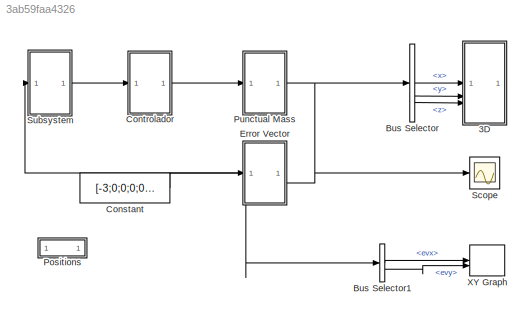
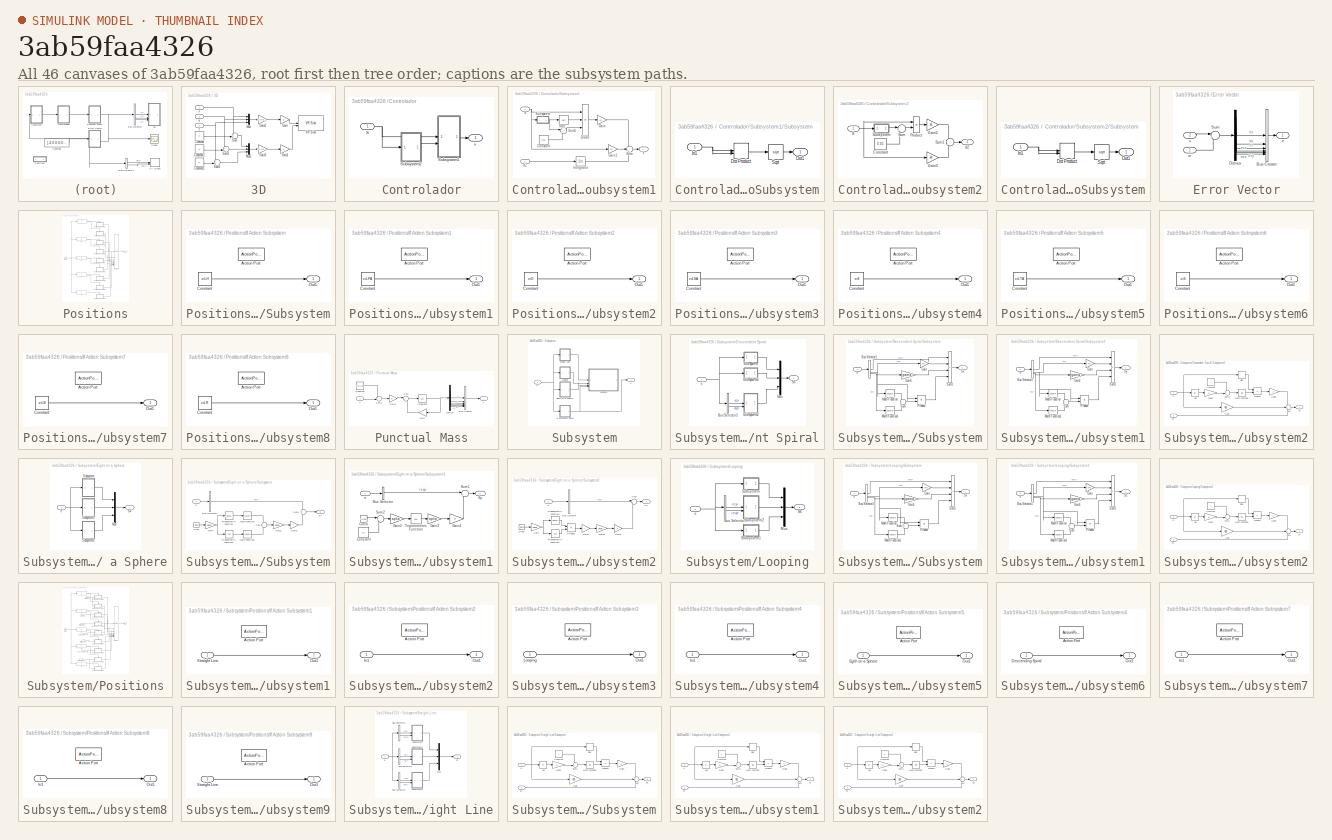
[diagram: thumbnail index - all 46 canvases of the model, root first then tree order]
MODEL slx_3ab59faa4326
KIND model
CONFIG AbsTol = auto
CONFIG EnableMultiTasking = off
CONFIG FixedStep = 0.01
CONFIG MaxStep = auto
CONFIG MinStep = auto
CONFIG RelTol = 1e-3
CONFIG SampleTimeConstraint = Unconstrained
CONFIG SolverName = ode8
CONFIG StartTime = 0.0
CONFIG StopTime = t6
BLOCK [SubSystem] 3D
BLOCK [Constant] 3D/Constant
  Value = 0
BLOCK [Constant] 3D/Constant1
  Value = 0
BLOCK [Constant] 3D/Constant2
  Value = 0
BLOCK [Gain] 3D/Gain
  Gain = 2
BLOCK [Gain] 3D/Gain1
  Gain = 2
BLOCK [Gain] 3D/Gain2
  Gain = [1 0 0; 0 0 1; 0 -1 0]
  Multiplication = Matrix(K*u)
BLOCK [Gain] 3D/Gain3
  Gain = [1 0 0; 0 0 1; 0 -1 0]
  Multiplication = Matrix(K*u)
BLOCK [Mux] 3D/Mux
  DisplayOption = bar
  Inputs = 3
BLOCK [Mux] 3D/Mux1
  DisplayOption = bar
  Inputs = 3
BLOCK [Sum] 3D/Sum
  Inputs = ++|
BLOCK [Sum] 3D/Sum1
  Inputs = ++|
BLOCK [Sum] 3D/Sum2
  Inputs = ++|
BLOCK [Reference] 3D/VR Sink  REF=vrlib/VR Sink
  InstantiateOnLoad = on
  SourceBlock = vrlib/VR Sink
  SourceType = Virtual Reality Sink
BLOCK [Inport] 3D/x
BLOCK [Inport] 3D/y
  Port = 2
BLOCK [Inport] 3D/z
  Port = 3
BLOCK [BusSelector] Bus Selector
  OutputSignals = x,y,z
BLOCK [BusSelector] Bus Selector1
  OutputSignals = evx,evy,evz
BLOCK [Constant] Constant
  Value = [-3;0;0;0;0;0]
BLOCK [SubSystem] Controlador
BLOCK [Inport] Controlador/S
BLOCK [SubSystem] Controlador/Subsystem1
BLOCK [Constant] Controlador/Subsystem1/Constant
  Value = 0.01
BLOCK [Product] Controlador/Subsystem1/Divide
  Inputs = **/
BLOCK [Gain] Controlador/Subsystem1/Gain
  Gain = k1
BLOCK [Gain] Controlador/Subsystem1/Gain1
  Gain = k2
BLOCK [Integrator] Controlador/Subsystem1/Integrator
BLOCK [Inport] Controlador/Subsystem1/S
BLOCK [Sqrt] Controlador/Subsystem1/Sqrt
BLOCK [SubSystem] Controlador/Subsystem1/Subsystem
BLOCK [DotProduct] Controlador/Subsystem1/Subsystem/Dot Product
  OutDataTypeStr = Inherit: Inherit via internal rule
BLOCK [Inport] Controlador/Subsystem1/Subsystem/In1
BLOCK [Outport] Controlador/Subsystem1/Subsystem/Out1
BLOCK [Sqrt] Controlador/Subsystem1/Subsystem/Sqrt
BLOCK [Sum] Controlador/Subsystem1/Sum
  Inputs = --+
BLOCK [Sum] Controlador/Subsystem1/Sum1
  Inputs = |++
BLOCK [Inport] Controlador/Subsystem1/dZ
  Port = 2
BLOCK [Outport] Controlador/Subsystem1/v
BLOCK [SubSystem] Controlador/Subsystem2
BLOCK [Constant] Controlador/Subsystem2/Constant
  Value = 0.01
BLOCK [Gain] Controlador/Subsystem2/Gain2
  Gain = k3
BLOCK [Gain] Controlador/Subsystem2/Gain3
  Gain = k4
BLOCK [Product] Controlador/Subsystem2/Product
  Inputs = */
BLOCK [Inport] Controlador/Subsystem2/S
BLOCK [SubSystem] Controlador/Subsystem2/Subsystem
BLOCK [DotProduct] Controlador/Subsystem2/Subsystem/Dot Product
  OutDataTypeStr = Inherit: Inherit via internal rule
BLOCK [Inport] Controlador/Subsystem2/Subsystem/In1
BLOCK [Outport] Controlador/Subsystem2/Subsystem/Out1
BLOCK [Sqrt] Controlador/Subsystem2/Subsystem/Sqrt
BLOCK [Sum] Controlador/Subsystem2/Sum
  Inputs = |++
BLOCK [Sum] Controlador/Subsystem2/Sum1
  Inputs = --
BLOCK [Outport] Controlador/Subsystem2/dZ
BLOCK [Outport] Controlador/v
BLOCK [SubSystem] Error Vector
  PortSchema = {"entries":[{"content":{"sides":[{"content":{"connectorIds":["Out1","In1"]},"type":"ConnectorPlacement.EquallySpacedRectSide","uuid":"f657f758-fbd3-4a41-9063-d27a9332990f"},{"content":{"connectorIds":["In2"],"side":"RIGHT"},"type":"ConnectorPlacement.EquallySpacedRectSide","uuid":"1c515ff8-89aa-408f-b30d-a9af781c1d92"},{"content":{"side":"TOP"},"type":"ConnectorPlacement.EquallySpacedRectSide","uu...<+228ch>
BLOCK [BusCreator] Error Vector/Bus Creator
  DisplayOption = bar
  InheritFromInputs = on
  Inputs = 6
BLOCK [Demux] Error Vector/Demux
  Outputs = 6
BLOCK [Sum] Error Vector/Sum
  Inputs = |+-
BLOCK [Outport] Error Vector/e
  NameLocation = top
BLOCK [Inport] Error Vector/x
  Port = 2
BLOCK [Inport] Error Vector/xr
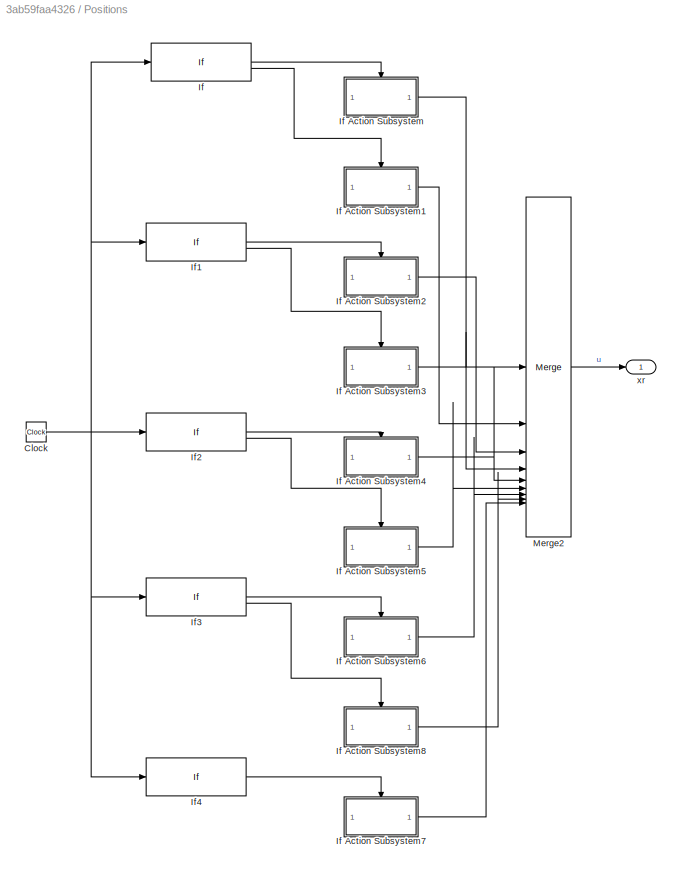
BLOCK [SubSystem] Positions
BLOCK [Clock] Positions/Clock
BLOCK [If] Positions/If
  ElseIfExpressions = u1 <= t2 & u1 > t1
  IfExpression = u1 <= t1
  ShowElse = off
BLOCK [SubSystem] Positions/If Action Subsystem
  TreatAsAtomicUnit = on
BLOCK [ActionPort] Positions/If Action Subsystem/Action Port
  ActionPortLabel = if(u1 <= t1)
BLOCK [Constant] Positions/If Action Subsystem/Constant
  Value = xrLH
BLOCK [Outport] Positions/If Action Subsystem/Out1
BLOCK [SubSystem] Positions/If Action Subsystem1
  TreatAsAtomicUnit = on
BLOCK [ActionPort] Positions/If Action Subsystem1/Action Port
  ActionPortLabel = elseif(u1 <= t2 & u1 > t1)
BLOCK [Constant] Positions/If Action Subsystem1/Constant
  Value = xrLPA
BLOCK [Outport] Positions/If Action Subsystem1/Out1
BLOCK [SubSystem] Positions/If Action Subsystem2
  TreatAsAtomicUnit = on
BLOCK [ActionPort] Positions/If Action Subsystem2/Action Port
  ActionPortLabel = if(u1 <= tO & u1 > t2)
BLOCK [Constant] Positions/If Action Subsystem2/Constant
  Value = xrO
BLOCK [Outport] Positions/If Action Subsystem2/Out1
BLOCK [SubSystem] Positions/If Action Subsystem3
  TreatAsAtomicUnit = on
BLOCK [ActionPort] Positions/If Action Subsystem3/Action Port
  ActionPortLabel = elseif(u1 <= t3 & u1 > tO)
BLOCK [Constant] Positions/If Action Subsystem3/Constant
  Value = xrLSA
BLOCK [Outport] Positions/If Action Subsystem3/Out1
BLOCK [SubSystem] Positions/If Action Subsystem4
  TreatAsAtomicUnit = on
BLOCK [ActionPort] Positions/If Action Subsystem4/Action Port
  ActionPortLabel = if(u1 <= t8 & u1 > t3)
BLOCK [Constant] Positions/If Action Subsystem4/Constant
  Value = xr8
BLOCK [Outport] Positions/If Action Subsystem4/Out1
BLOCK [SubSystem] Positions/If Action Subsystem5
  TreatAsAtomicUnit = on
BLOCK [ActionPort] Positions/If Action Subsystem5/Action Port
  ActionPortLabel = elseif(u1 <= t4 & u1 > t8)
BLOCK [Constant] Positions/If Action Subsystem5/Constant
  Value = xrLTA
BLOCK [Outport] Positions/If Action Subsystem5/Out1
BLOCK [SubSystem] Positions/If Action Subsystem6
  TreatAsAtomicUnit = on
BLOCK [ActionPort] Positions/If Action Subsystem6/Action Port
  ActionPortLabel = if(u1 <= tS & u1 > t4)
BLOCK [Constant] Positions/If Action Subsystem6/Constant
  Value = xrS
BLOCK [Outport] Positions/If Action Subsystem6/Out1
BLOCK [SubSystem] Positions/If Action Subsystem7
  TreatAsAtomicUnit = on
BLOCK [ActionPort] Positions/If Action Subsystem7/Action Port
  ActionPortLabel = if(u1 > t5)
BLOCK [Constant] Positions/If Action Subsystem7/Constant
  Value = xrLB
BLOCK [Outport] Positions/If Action Subsystem7/Out1
BLOCK [SubSystem] Positions/If Action Subsystem8
  TreatAsAtomicUnit = on
BLOCK [ActionPort] Positions/If Action Subsystem8/Action Port
  ActionPortLabel = elseif(u1 <= t5 & u1 > tS)
BLOCK [Constant] Positions/If Action Subsystem8/Constant
  Value = xrLR
BLOCK [Outport] Positions/If Action Subsystem8/Out1
BLOCK [If] Positions/If1
  ElseIfExpressions = u1 <= t3 & u1 > tO
  IfExpression = u1 <= tO & u1 > t2
  ShowElse = off
BLOCK [If] Positions/If2
  ElseIfExpressions = u1 <= t4 & u1 > t8
  IfExpression = u1 <= t8 & u1 > t3
  ShowElse = off
BLOCK [If] Positions/If3
  ElseIfExpressions = u1 <= t5 & u1 > tS
  IfExpression = u1 <= tS & u1 > t4
  ShowElse = off
BLOCK [If] Positions/If4
  IfExpression = u1 > t5
  ShowElse = off
BLOCK [Merge] Positions/Merge2
  Inputs = 9
BLOCK [Outport] Positions/xr
BLOCK [SubSystem] Punctual Mass
BLOCK [BusCreator] Punctual Mass/Bus Creator
  DisplayOption = bar
  InheritFromInputs = on
  Inputs = 6
BLOCK [Constant] Punctual Mass/Constant
  Value = [0;0;0]
BLOCK [Demux] Punctual Mass/Demux
  Outputs = 6
BLOCK [Gain] Punctual Mass/Gain
  Gain = A
  Multiplication = Matrix(K*u)
  NameLocation = top
BLOCK [Gain] Punctual Mass/Gain1
  Gain = B
  Multiplication = Matrix(K*u)
BLOCK [Integrator] Punctual Mass/Integrator
  InitialCondition = [0;0;0;0;0;0]
BLOCK [Sum] Punctual Mass/Sum
  Inputs = |++
BLOCK [Sum] Punctual Mass/Sum1
  Inputs = ++|
BLOCK [Inport] Punctual Mass/u
BLOCK [Outport] Punctual Mass/x
BLOCK [Scope] Scope
  Floating = off
  NumInputPorts = 1
  ScopeSpecificationString = Simulink.scopes.TimeScopeBlockCfg('CurrentConfiguration', extmgr.ConfigurationSet(extmgr.Configuration('Core','General UI',true),extmgr.Configuration('Core','Source UI',true),extmgr.Configuration('Sources','WiredSimulink',true),extmgr.Configuration('Visuals','Time Domain',true,'SerializedDisplays',{struct('MinYLimReal','-12.34994','MaxYLimReal','3.66302','YLabelReal','','MinYLimMag','0.00000','Max...<+1483ch>
BLOCK [SubSystem] Subsystem
BLOCK [SubSystem] Subsystem/Descendent Spiral
BLOCK [BusSelector] Subsystem/Descendent Spiral/Bus Selector3
  OutputSignals = ez,evz
BLOCK [Mux] Subsystem/Descendent Spiral/Mux
  DisplayOption = bar
  Inputs = 3
BLOCK [Outport] Subsystem/Descendent Spiral/S6
BLOCK [SubSystem] Subsystem/Descendent Spiral/Subsystem
BLOCK [BusSelector] Subsystem/Descendent Spiral/Subsystem/Bus Selector1
  OutputSignals = evx,ex,ey
BLOCK [Gain] Subsystem/Descendent Spiral/Subsystem/Gain
  Gain = mu
BLOCK [Gain] Subsystem/Descendent Spiral/Subsystem/Gain1
  Gain = gama
BLOCK [Math] Subsystem/Descendent Spiral/Subsystem/Math Function
  Operator = square
BLOCK [Math] Subsystem/Descendent Spiral/Subsystem/Math Function1
  Operator = square
BLOCK [Product] Subsystem/Descendent Spiral/Subsystem/Product
BLOCK [Sum] Subsystem/Descendent Spiral/Subsystem/Sum
BLOCK [Sum] Subsystem/Descendent Spiral/Subsystem/Sum1
  IconShape = rectangular
  Inputs = +--+
BLOCK [Outport] Subsystem/Descendent Spiral/Subsystem/Sx
BLOCK [Inport] Subsystem/Descendent Spiral/Subsystem/e
BLOCK [SubSystem] Subsystem/Descendent Spiral/Subsystem1
BLOCK [BusSelector] Subsystem/Descendent Spiral/Subsystem1/Bus Selector1
  OutputSignals = evy,ey,ex
BLOCK [Gain] Subsystem/Descendent Spiral/Subsystem1/Gain
  Gain = mu
BLOCK [Gain] Subsystem/Descendent Spiral/Subsystem1/Gain1
  Gain = gama
BLOCK [Math] Subsystem/Descendent Spiral/Subsystem1/Math Function
  Operator = square
BLOCK [Math] Subsystem/Descendent Spiral/Subsystem1/Math Function1
  Operator = square
BLOCK [Product] Subsystem/Descendent Spiral/Subsystem1/Product
BLOCK [Sum] Subsystem/Descendent Spiral/Subsystem1/Sum
BLOCK [Sum] Subsystem/Descendent Spiral/Subsystem1/Sum1
  IconShape = rectangular
  Inputs = +-++
BLOCK [Outport] Subsystem/Descendent Spiral/Subsystem1/Sy
BLOCK [Inport] Subsystem/Descendent Spiral/Subsystem1/e
BLOCK [SubSystem] Subsystem/Descendent Spiral/Subsystem2
BLOCK [Abs] Subsystem/Descendent Spiral/Subsystem2/Abs
  SaturateOnIntegerOverflow = off
BLOCK [Constant] Subsystem/Descendent Spiral/Subsystem2/Constant
BLOCK [Gain] Subsystem/Descendent Spiral/Subsystem2/Gain
  Gain = cp
BLOCK [Gain] Subsystem/Descendent Spiral/Subsystem2/Gain1
  Gain = c
BLOCK [Gain] Subsystem/Descendent Spiral/Subsystem2/Gain2
  Gain = k
BLOCK [Math] Subsystem/Descendent Spiral/Subsystem2/Math Function
  Operator = log
BLOCK [Product] Subsystem/Descendent Spiral/Subsystem2/Product
BLOCK [Signum] Subsystem/Descendent Spiral/Subsystem2/Sign
BLOCK [Sum] Subsystem/Descendent Spiral/Subsystem2/Sum
  Inputs = +++
BLOCK [Sum] Subsystem/Descendent Spiral/Subsystem2/Sum1
  Inputs = ++|
BLOCK [Outport] Subsystem/Descendent Spiral/Subsystem2/Sz
BLOCK [Inport] Subsystem/Descendent Spiral/Subsystem2/e
BLOCK [Inport] Subsystem/Descendent Spiral/Subsystem2/ev
  Port = 2
BLOCK [Inport] Subsystem/Descendent Spiral/e
BLOCK [SubSystem] Subsystem/Eight on a Sphere
BLOCK [Mux] Subsystem/Eight on a Sphere/Mux
  DisplayOption = bar
  Inputs = 3
BLOCK [Outport] Subsystem/Eight on a Sphere/S4
BLOCK [SubSystem] Subsystem/Eight on a Sphere/Subsystem
BLOCK [BusSelector] Subsystem/Eight on a Sphere/Subsystem/Bus Selector1
  OutputSignals = evx
BLOCK [Clock] Subsystem/Eight on a Sphere/Subsystem/Clock
BLOCK [Gain] Subsystem/Eight on a Sphere/Subsystem/Gain
  Gain = apha
BLOCK [Gain] Subsystem/Eight on a Sphere/Subsystem/Gain1
  Gain = apha
BLOCK [Gain] Subsystem/Eight on a Sphere/Subsystem/Gain2
  Gain = r
BLOCK [Math] Subsystem/Eight on a Sphere/Subsystem/Math Function
  Operator = square
BLOCK [Math] Subsystem/Eight on a Sphere/Subsystem/Math Function1
  Operator = square
BLOCK [Sum] Subsystem/Eight on a Sphere/Subsystem/Sum
  Inputs = -+
BLOCK [Sum] Subsystem/Eight on a Sphere/Subsystem/Sum1
BLOCK [Outport] Subsystem/Eight on a Sphere/Subsystem/Sx
BLOCK [Trigonometry] Subsystem/Eight on a Sphere/Subsystem/Trigonometric Function
BLOCK [Trigonometry] Subsystem/Eight on a Sphere/Subsystem/Trigonometric Function1
  Operator = cos
BLOCK [Inport] Subsystem/Eight on a Sphere/Subsystem/e
BLOCK [SubSystem] Subsystem/Eight on a Sphere/Subsystem1
BLOCK [BusSelector] Subsystem/Eight on a Sphere/Subsystem1/Bus Selector
  OutputSignals = evy
BLOCK [Clock] Subsystem/Eight on a Sphere/Subsystem1/Clock
BLOCK [Constant] Subsystem/Eight on a Sphere/Subsystem1/Constant
  Value = t3
BLOCK [Gain] Subsystem/Eight on a Sphere/Subsystem1/Gain2
  Gain = apha
BLOCK [Gain] Subsystem/Eight on a Sphere/Subsystem1/Gain3
  Gain = apha
BLOCK [Gain] Subsystem/Eight on a Sphere/Subsystem1/Gain4
  Gain = r
BLOCK [Sum] Subsystem/Eight on a Sphere/Subsystem1/Sum1
  Inputs = |+-
BLOCK [Sum] Subsystem/Eight on a Sphere/Subsystem1/Sum2
  Inputs = |+-
BLOCK [Outport] Subsystem/Eight on a Sphere/Subsystem1/Sy
BLOCK [Trigonometry] Subsystem/Eight on a Sphere/Subsystem1/Trigonometric Function
  Operator = cos
BLOCK [Inport] Subsystem/Eight on a Sphere/Subsystem1/e
BLOCK [SubSystem] Subsystem/Eight on a Sphere/Subsystem2
BLOCK [BusSelector] Subsystem/Eight on a Sphere/Subsystem2/Bus Selector
  OutputSignals = evz
BLOCK [Clock] Subsystem/Eight on a Sphere/Subsystem2/Clock
BLOCK [Gain] Subsystem/Eight on a Sphere/Subsystem2/Gain
  Gain = apha
BLOCK [Gain] Subsystem/Eight on a Sphere/Subsystem2/Gain1
  Gain = r
BLOCK [Gain] Subsystem/Eight on a Sphere/Subsystem2/Gain2
  Gain = apha
BLOCK [Gain] Subsystem/Eight on a Sphere/Subsystem2/Gain3
  Gain = 2
BLOCK [Product] Subsystem/Eight on a Sphere/Subsystem2/Product
BLOCK [Sum] Subsystem/Eight on a Sphere/Subsystem2/Sum
  Inputs = |+-
BLOCK [Outport] Subsystem/Eight on a Sphere/Subsystem2/Sz
BLOCK [Trigonometry] Subsystem/Eight on a Sphere/Subsystem2/Trigonometric Function
BLOCK [Trigonometry] Subsystem/Eight on a Sphere/Subsystem2/Trigonometric Function1
  Operator = cos
BLOCK [Inport] Subsystem/Eight on a Sphere/Subsystem2/e
BLOCK [Inport] Subsystem/Eight on a Sphere/e
BLOCK [SubSystem] Subsystem/Looping
BLOCK [BusSelector] Subsystem/Looping/Bus Selector3
  OutputSignals = ey,evy
BLOCK [Mux] Subsystem/Looping/Mux
  DisplayOption = bar
  Inputs = 3
BLOCK [Outport] Subsystem/Looping/S6
BLOCK [SubSystem] Subsystem/Looping/Subsystem
BLOCK [BusSelector] Subsystem/Looping/Subsystem/Bus Selector1
  OutputSignals = evx,ex,ez
BLOCK [Gain] Subsystem/Looping/Subsystem/Gain
  Gain = mu
BLOCK [Gain] Subsystem/Looping/Subsystem/Gain1
  Gain = gama
BLOCK [Math] Subsystem/Looping/Subsystem/Math Function
  Operator = square
BLOCK [Math] Subsystem/Looping/Subsystem/Math Function1
  Operator = square
BLOCK [Product] Subsystem/Looping/Subsystem/Product
BLOCK [Sum] Subsystem/Looping/Subsystem/Sum
BLOCK [Sum] Subsystem/Looping/Subsystem/Sum1
  IconShape = rectangular
  Inputs = +--+
BLOCK [Outport] Subsystem/Looping/Subsystem/Sx
BLOCK [Inport] Subsystem/Looping/Subsystem/e
BLOCK [SubSystem] Subsystem/Looping/Subsystem1
BLOCK [BusSelector] Subsystem/Looping/Subsystem1/Bus Selector1
  OutputSignals = evz,ez,ex
BLOCK [Gain] Subsystem/Looping/Subsystem1/Gain
  Gain = mu
BLOCK [Gain] Subsystem/Looping/Subsystem1/Gain1
  Gain = gama
BLOCK [Math] Subsystem/Looping/Subsystem1/Math Function
  Operator = square
BLOCK [Math] Subsystem/Looping/Subsystem1/Math Function1
  Operator = square
BLOCK [Product] Subsystem/Looping/Subsystem1/Product
BLOCK [Sum] Subsystem/Looping/Subsystem1/Sum
BLOCK [Sum] Subsystem/Looping/Subsystem1/Sum1
  IconShape = rectangular
  Inputs = +-++
BLOCK [Outport] Subsystem/Looping/Subsystem1/Sz
BLOCK [Inport] Subsystem/Looping/Subsystem1/e
BLOCK [SubSystem] Subsystem/Looping/Subsystem2
BLOCK [Abs] Subsystem/Looping/Subsystem2/Abs
  SaturateOnIntegerOverflow = off
BLOCK [Constant] Subsystem/Looping/Subsystem2/Constant
BLOCK [Gain] Subsystem/Looping/Subsystem2/Gain
  Gain = cp
BLOCK [Gain] Subsystem/Looping/Subsystem2/Gain1
  Gain = c
BLOCK [Gain] Subsystem/Looping/Subsystem2/Gain2
  Gain = k
BLOCK [Math] Subsystem/Looping/Subsystem2/Math Function
  Operator = log
BLOCK [Product] Subsystem/Looping/Subsystem2/Product
BLOCK [Signum] Subsystem/Looping/Subsystem2/Sign
BLOCK [Sum] Subsystem/Looping/Subsystem2/Sum
  Inputs = +++
BLOCK [Sum] Subsystem/Looping/Subsystem2/Sum1
  Inputs = ++|
BLOCK [Outport] Subsystem/Looping/Subsystem2/Sy
BLOCK [Inport] Subsystem/Looping/Subsystem2/e
BLOCK [Inport] Subsystem/Looping/Subsystem2/ev
  Port = 2
BLOCK [Inport] Subsystem/Looping/e
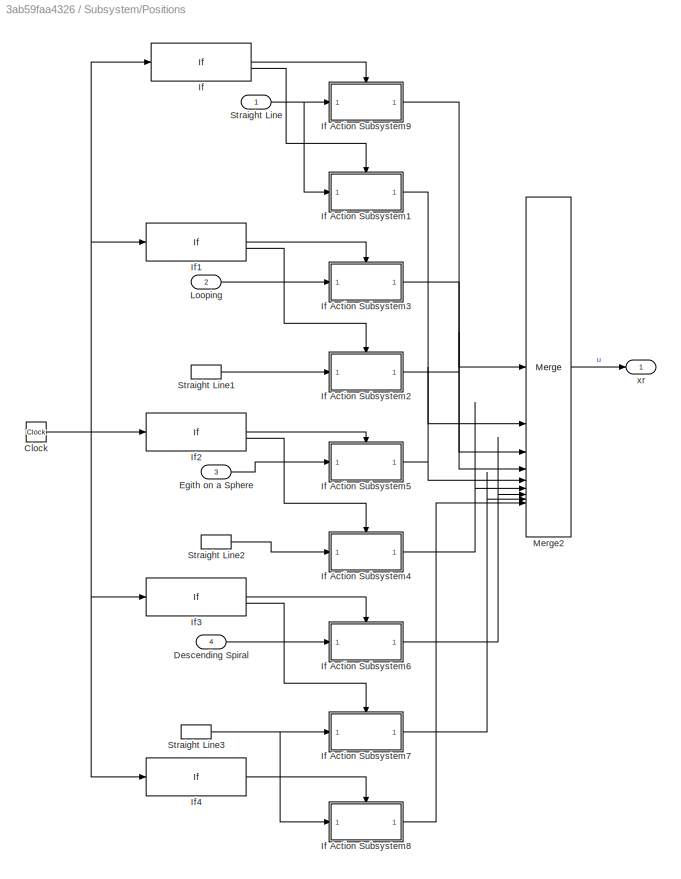
BLOCK [SubSystem] Subsystem/Positions
BLOCK [Clock] Subsystem/Positions/Clock
BLOCK [Inport] Subsystem/Positions/Descending Spiral
  Port = 4
BLOCK [Inport] Subsystem/Positions/Egith on a Sphere
  Port = 3
BLOCK [If] Subsystem/Positions/If
  ElseIfExpressions = u1 <= t2 & u1 > t1
  IfExpression = u1 <= t1
  ShowElse = off
BLOCK [SubSystem] Subsystem/Positions/If Action Subsystem1
  TreatAsAtomicUnit = on
BLOCK [ActionPort] Subsystem/Positions/If Action Subsystem1/Action Port
  ActionPortLabel = elseif(u1 <= t2 & u1 > t1)
BLOCK [Outport] Subsystem/Positions/If Action Subsystem1/Out1
BLOCK [Inport] Subsystem/Positions/If Action Subsystem1/Straight Line
BLOCK [SubSystem] Subsystem/Positions/If Action Subsystem2
  TreatAsAtomicUnit = on
BLOCK [ActionPort] Subsystem/Positions/If Action Subsystem2/Action Port
  ActionPortLabel = elseif(u1 <= t3 & u1 > tO)
BLOCK [Inport] Subsystem/Positions/If Action Subsystem2/In1
BLOCK [Outport] Subsystem/Positions/If Action Subsystem2/Out1
BLOCK [SubSystem] Subsystem/Positions/If Action Subsystem3
  TreatAsAtomicUnit = on
BLOCK [ActionPort] Subsystem/Positions/If Action Subsystem3/Action Port
  ActionPortLabel = if(u1 <= tO & u1 > t2)
BLOCK [Inport] Subsystem/Positions/If Action Subsystem3/Looping
BLOCK [Outport] Subsystem/Positions/If Action Subsystem3/Out1
BLOCK [SubSystem] Subsystem/Positions/If Action Subsystem4
  TreatAsAtomicUnit = on
BLOCK [ActionPort] Subsystem/Positions/If Action Subsystem4/Action Port
  ActionPortLabel = elseif(u1 <= t4 & u1 > t8)
BLOCK [Inport] Subsystem/Positions/If Action Subsystem4/In1
BLOCK [Outport] Subsystem/Positions/If Action Subsystem4/Out1
BLOCK [SubSystem] Subsystem/Positions/If Action Subsystem5
  TreatAsAtomicUnit = on
BLOCK [ActionPort] Subsystem/Positions/If Action Subsystem5/Action Port
  ActionPortLabel = if(u1 <= t8 & u1 > t3)
BLOCK [Inport] Subsystem/Positions/If Action Subsystem5/Egith on a Sphere
BLOCK [Outport] Subsystem/Positions/If Action Subsystem5/Out1
BLOCK [SubSystem] Subsystem/Positions/If Action Subsystem6
  TreatAsAtomicUnit = on
BLOCK [ActionPort] Subsystem/Positions/If Action Subsystem6/Action Port
  ActionPortLabel = if(u1 <= tS & u1 > t4)
BLOCK [Inport] Subsystem/Positions/If Action Subsystem6/Descending Spiral
BLOCK [Outport] Subsystem/Positions/If Action Subsystem6/Out1
BLOCK [SubSystem] Subsystem/Positions/If Action Subsystem7
  TreatAsAtomicUnit = on
BLOCK [ActionPort] Subsystem/Positions/If Action Subsystem7/Action Port
  ActionPortLabel = elseif(u1 <= t5 & u1 > tS)
BLOCK [Inport] Subsystem/Positions/If Action Subsystem7/In1
BLOCK [Outport] Subsystem/Positions/If Action Subsystem7/Out1
BLOCK [SubSystem] Subsystem/Positions/If Action Subsystem8
  TreatAsAtomicUnit = on
BLOCK [ActionPort] Subsystem/Positions/If Action Subsystem8/Action Port
  ActionPortLabel = if(u1 > t5)
BLOCK [Inport] Subsystem/Positions/If Action Subsystem8/In1
BLOCK [Outport] Subsystem/Positions/If Action Subsystem8/Out1
BLOCK [SubSystem] Subsystem/Positions/If Action Subsystem9
  TreatAsAtomicUnit = on
BLOCK [ActionPort] Subsystem/Positions/If Action Subsystem9/Action Port
  ActionPortLabel = if(u1 <= t1)
BLOCK [Outport] Subsystem/Positions/If Action Subsystem9/Out1
BLOCK [Inport] Subsystem/Positions/If Action Subsystem9/Straight Line
BLOCK [If] Subsystem/Positions/If1
  ElseIfExpressions = u1 <= t3 & u1 > tO
  IfExpression = u1 <= tO & u1 > t2
  ShowElse = off
BLOCK [If] Subsystem/Positions/If2
  ElseIfExpressions = u1 <= t4 & u1 > t8
  IfExpression = u1 <= t8 & u1 > t3
  ShowElse = off
BLOCK [If] Subsystem/Positions/If3
  ElseIfExpressions = u1 <= t5 & u1 > tS
  IfExpression = u1 <= tS & u1 > t4
  ShowElse = off
BLOCK [If] Subsystem/Positions/If4
  IfExpression = u1 > t5
  ShowElse = off
BLOCK [Inport] Subsystem/Positions/Looping
  Port = 2
BLOCK [Merge] Subsystem/Positions/Merge2
  Inputs = 9
BLOCK [Inport] Subsystem/Positions/Straight Line
BLOCK [InportShadow] Subsystem/Positions/Straight Line1
BLOCK [InportShadow] Subsystem/Positions/Straight Line2
BLOCK [InportShadow] Subsystem/Positions/Straight Line3
BLOCK [Outport] Subsystem/Positions/xr
BLOCK [Outport] Subsystem/S
BLOCK [SubSystem] Subsystem/Staight Line
BLOCK [BusSelector] Subsystem/Staight Line/Bus Selector1
  OutputSignals = ex,evx
BLOCK [BusSelector] Subsystem/Staight Line/Bus Selector2
  OutputSignals = ey,evy
BLOCK [BusSelector] Subsystem/Staight Line/Bus Selector3
  OutputSignals = ez,evz
BLOCK [Mux] Subsystem/Staight Line/Mux
  DisplayOption = bar
  Inputs = 3
BLOCK [Outport] Subsystem/Staight Line/Sj
BLOCK [SubSystem] Subsystem/Staight Line/Subsystem
BLOCK [Abs] Subsystem/Staight Line/Subsystem/Abs
  SaturateOnIntegerOverflow = off
BLOCK [Constant] Subsystem/Staight Line/Subsystem/Constant
BLOCK [Gain] Subsystem/Staight Line/Subsystem/Gain
  Gain = cp
BLOCK [Gain] Subsystem/Staight Line/Subsystem/Gain1
  Gain = c
BLOCK [Gain] Subsystem/Staight Line/Subsystem/Gain2
  Gain = k
BLOCK [Math] Subsystem/Staight Line/Subsystem/Math Function
  Operator = log
BLOCK [Product] Subsystem/Staight Line/Subsystem/Product
BLOCK [Signum] Subsystem/Staight Line/Subsystem/Sign
BLOCK [Sum] Subsystem/Staight Line/Subsystem/Sum
  Inputs = +++
BLOCK [Sum] Subsystem/Staight Line/Subsystem/Sum1
  Inputs = ++|
BLOCK [Outport] Subsystem/Staight Line/Subsystem/Sx
BLOCK [Inport] Subsystem/Staight Line/Subsystem/e
BLOCK [Inport] Subsystem/Staight Line/Subsystem/ev
  Port = 2
BLOCK [SubSystem] Subsystem/Staight Line/Subsystem1
BLOCK [Abs] Subsystem/Staight Line/Subsystem1/Abs
  SaturateOnIntegerOverflow = off
BLOCK [Constant] Subsystem/Staight Line/Subsystem1/Constant
BLOCK [Gain] Subsystem/Staight Line/Subsystem1/Gain
  Gain = cp
BLOCK [Gain] Subsystem/Staight Line/Subsystem1/Gain1
  Gain = c
BLOCK [Gain] Subsystem/Staight Line/Subsystem1/Gain2
  Gain = k
BLOCK [Math] Subsystem/Staight Line/Subsystem1/Math Function
  Operator = log
BLOCK [Product] Subsystem/Staight Line/Subsystem1/Product
BLOCK [Signum] Subsystem/Staight Line/Subsystem1/Sign
BLOCK [Sum] Subsystem/Staight Line/Subsystem1/Sum
  Inputs = +++
BLOCK [Sum] Subsystem/Staight Line/Subsystem1/Sum1
  Inputs = ++|
BLOCK [Outport] Subsystem/Staight Line/Subsystem1/Sy
BLOCK [Inport] Subsystem/Staight Line/Subsystem1/e
BLOCK [Inport] Subsystem/Staight Line/Subsystem1/ev
  Port = 2
BLOCK [SubSystem] Subsystem/Staight Line/Subsystem2
BLOCK [Abs] Subsystem/Staight Line/Subsystem2/Abs
  SaturateOnIntegerOverflow = off
BLOCK [Constant] Subsystem/Staight Line/Subsystem2/Constant
BLOCK [Gain] Subsystem/Staight Line/Subsystem2/Gain
  Gain = cp
BLOCK [Gain] Subsystem/Staight Line/Subsystem2/Gain1
  Gain = c
BLOCK [Gain] Subsystem/Staight Line/Subsystem2/Gain2
  Gain = k
BLOCK [Math] Subsystem/Staight Line/Subsystem2/Math Function
  Operator = log
BLOCK [Product] Subsystem/Staight Line/Subsystem2/Product
BLOCK [Signum] Subsystem/Staight Line/Subsystem2/Sign
BLOCK [Sum] Subsystem/Staight Line/Subsystem2/Sum
  Inputs = +++
BLOCK [Sum] Subsystem/Staight Line/Subsystem2/Sum1
  Inputs = ++|
BLOCK [Outport] Subsystem/Staight Line/Subsystem2/Sz
BLOCK [Inport] Subsystem/Staight Line/Subsystem2/e
BLOCK [Inport] Subsystem/Staight Line/Subsystem2/ev
  Port = 2
BLOCK [Inport] Subsystem/Staight Line/e
BLOCK [Inport] Subsystem/e
BLOCK [Record] XY Graph
  CompatibilityTag = XY
  FileSettingsInternal = {"entries":[{"content":{"excelSettings":{"content":{},"type":"Streamout.ExcelSettings"}},"type":"Streamout.FileSettingStorage","uuid":""}],"packageUris":["http:\/\/schema.mathworks.com\/mf0\/streamout_blocks\/R2020a"],"version":"1.0"}
  Layout = [1 1]
  SignalsInternal = {"entries":[{"content":{"signals":[{"content":{"blockPath":[],"dimensions":[1],"domain":"","lineColor":"#a2142f","plots":[1],"port":1,"sid":[""],"signalID":12236,"signalName":"<evx>"},"type":"RecordBlkView.Signal","uuid":""},{"content":{"blockPath":[],"dimensions":[1],"domain":"","lineColor":"#139fff","plots":[1],"port":2,"sid":[""],"signalID":12240,"signalName":"<evy>"},"type":"RecordBlkView.Sign...<+160ch>
  VisualizationBindings = {"xyplotplugin":{"info":[{"series":[{"bindingParametersList":[{"parameter":"X-Axis","signalID":12236,"signalName":"<evx>"},{"parameter":"Y-Axis","signalID":12240,"signalName":"<evy>"}],"seriesID":43551}],"subplotID":1}]}}
LINE 3D/Constant1:1 -> 3D/Sum1:2
LINE 3D/Constant2:1 -> 3D/Sum2:2
LINE 3D/Constant:1 -> 3D/Sum:2
LINE 3D/Gain1:1 -> 3D/VR Sink:2
LINE 3D/Gain2:1 -> 3D/Gain:1
LINE 3D/Gain3:1 -> 3D/Gain1:1
LINE 3D/Gain:1 -> 3D/VR Sink:1
LINE 3D/Mux1:1 -> 3D/Gain3:1
LINE 3D/Mux:1 -> 3D/Gain2:1
LINE 3D/Sum1:1 -> 3D/Mux1:3
LINE 3D/Sum2:1 -> 3D/Mux1:2
LINE 3D/Sum:1 -> 3D/Mux1:1
NET 3D/x:1 -> 3D/Mux:1, 3D/Sum:1
NET 3D/y:1 -> 3D/Mux:2, 3D/Sum2:1
NET 3D/z:1 -> 3D/Mux:3, 3D/Sum1:1
LINE Bus Selector1:1 -> XY Graph:1
LINE Bus Selector1:2 -> XY Graph:2
LINE Bus Selector:1 -> 3D:1
LINE Bus Selector:2 -> 3D:2
LINE Bus Selector:3 -> 3D:3
LINE Constant:1 -> Error Vector:1
NET Controlador/S:1 -> Controlador/Subsystem1:1, Controlador/Subsystem2:1
LINE Controlador/Subsystem1/Constant:1 -> Controlador/Subsystem1/Sum1:2
LINE Controlador/Subsystem1/Divide:1 -> Controlador/Subsystem1/Gain:1
LINE Controlador/Subsystem1/Gain1:1 -> Controlador/Subsystem1/Sum:2
LINE Controlador/Subsystem1/Gain:1 -> Controlador/Subsystem1/Sum:1
LINE Controlador/Subsystem1/Integrator:1 -> Controlador/Subsystem1/Sum:3
NET Controlador/Subsystem1/S:1 -> Controlador/Subsystem1/Divide:1, Controlador/Subsystem1/Gain1:1, Controlador/Subsystem1/Subsystem:1
LINE Controlador/Subsystem1/Sqrt:1 -> Controlador/Subsystem1/Divide:2
LINE Controlador/Subsystem1/Subsystem/Dot Product:1 -> Controlador/Subsystem1/Subsystem/Sqrt:1
NET Controlador/Subsystem1/Subsystem/In1:1 -> Controlador/Subsystem1/Subsystem/Dot Product:1, Controlador/Subsystem1/Subsystem/Dot Product:2
LINE Controlador/Subsystem1/Subsystem/Sqrt:1 -> Controlador/Subsystem1/Subsystem/Out1:1
NET Controlador/Subsystem1/Subsystem:1 -> Controlador/Subsystem1/Sqrt:1, Controlador/Subsystem1/Sum1:1
LINE Controlador/Subsystem1/Sum1:1 -> Controlador/Subsystem1/Divide:3
LINE Controlador/Subsystem1/Sum:1 -> Controlador/Subsystem1/v:1
LINE Controlador/Subsystem1/dZ:1 -> Controlador/Subsystem1/Integrator:1
LINE Controlador/Subsystem1:1 -> Controlador/v:1
LINE Controlador/Subsystem2/Constant:1 -> Controlador/Subsystem2/Sum:2
LINE Controlador/Subsystem2/Gain2:1 -> Controlador/Subsystem2/Sum1:1
LINE Controlador/Subsystem2/Gain3:1 -> Controlador/Subsystem2/Sum1:2
LINE Controlador/Subsystem2/Product:1 -> Controlador/Subsystem2/Gain2:1
NET Controlador/Subsystem2/S:1 -> Controlador/Subsystem2/Gain3:1, Controlador/Subsystem2/Product:1, Controlador/Subsystem2/Subsystem:1
LINE Controlador/Subsystem2/Subsystem/Dot Product:1 -> Controlador/Subsystem2/Subsystem/Sqrt:1
NET Controlador/Subsystem2/Subsystem/In1:1 -> Controlador/Subsystem2/Subsystem/Dot Product:1, Controlador/Subsystem2/Subsystem/Dot Product:2
LINE Controlador/Subsystem2/Subsystem/Sqrt:1 -> Controlador/Subsystem2/Subsystem/Out1:1
LINE Controlador/Subsystem2/Subsystem:1 -> Controlador/Subsystem2/Sum:1
LINE Controlador/Subsystem2/Sum1:1 -> Controlador/Subsystem2/dZ:1
LINE Controlador/Subsystem2/Sum:1 -> Controlador/Subsystem2/Product:2
LINE Controlador/Subsystem2:1 -> Controlador/Subsystem1:2
LINE Controlador:1 -> Punctual Mass:1
LINE Error Vector/Bus Creator:1 -> Error Vector/e:1
LINE Error Vector/Demux:1 -> Error Vector/Bus Creator:1
LINE Error Vector/Demux:2 -> Error Vector/Bus Creator:2
LINE Error Vector/Demux:3 -> Error Vector/Bus Creator:3
LINE Error Vector/Demux:4 -> Error Vector/Bus Creator:4
LINE Error Vector/Demux:5 -> Error Vector/Bus Creator:5
LINE Error Vector/Demux:6 -> Error Vector/Bus Creator:6
LINE Error Vector/Sum:1 -> Error Vector/Demux:1
LINE Error Vector/x:1 -> Error Vector/Sum:1
LINE Error Vector/xr:1 -> Error Vector/Sum:2
NET Error Vector:1 -> Bus Selector1:1, Subsystem:1
NET Positions/Clock:1 -> Positions/If1:1, Positions/If2:1, Positions/If3:1, Positions/If4:1, Positions/If:1
LINE Positions/If Action Subsystem/Constant:1 -> Positions/If Action Subsystem/Out1:1
LINE Positions/If Action Subsystem1/Constant:1 -> Positions/If Action Subsystem1/Out1:1
LINE Positions/If Action Subsystem1:1 -> Positions/Merge2:2
LINE Positions/If Action Subsystem2/Constant:1 -> Positions/If Action Subsystem2/Out1:1
LINE Positions/If Action Subsystem2:1 -> Positions/Merge2:3
LINE Positions/If Action Subsystem3/Constant:1 -> Positions/If Action Subsystem3/Out1:1
LINE Positions/If Action Subsystem3:1 -> Positions/Merge2:4
LINE Positions/If Action Subsystem4/Constant:1 -> Positions/If Action Subsystem4/Out1:1
LINE Positions/If Action Subsystem4:1 -> Positions/Merge2:5
LINE Positions/If Action Subsystem5/Constant:1 -> Positions/If Action Subsystem5/Out1:1
LINE Positions/If Action Subsystem5:1 -> Positions/Merge2:6
LINE Positions/If Action Subsystem6/Constant:1 -> Positions/If Action Subsystem6/Out1:1
LINE Positions/If Action Subsystem6:1 -> Positions/Merge2:7
LINE Positions/If Action Subsystem7/Constant:1 -> Positions/If Action Subsystem7/Out1:1
LINE Positions/If Action Subsystem7:1 -> Positions/Merge2:9
LINE Positions/If Action Subsystem8/Constant:1 -> Positions/If Action Subsystem8/Out1:1
LINE Positions/If Action Subsystem8:1 -> Positions/Merge2:8
LINE Positions/If Action Subsystem:1 -> Positions/Merge2:1
LINE Positions/If1:1 -> Positions/If Action Subsystem2:ifaction
LINE Positions/If1:2 -> Positions/If Action Subsystem3:ifaction
LINE Positions/If2:1 -> Positions/If Action Subsystem4:ifaction
LINE Positions/If2:2 -> Positions/If Action Subsystem5:ifaction
LINE Positions/If3:1 -> Positions/If Action Subsystem6:ifaction
LINE Positions/If3:2 -> Positions/If Action Subsystem8:ifaction
LINE Positions/If4:1 -> Positions/If Action Subsystem7:ifaction
LINE Positions/If:1 -> Positions/If Action Subsystem:ifaction
LINE Positions/If:2 -> Positions/If Action Subsystem1:ifaction
LINE Positions/Merge2:1 -> Positions/xr:1
LINE Punctual Mass/Bus Creator:1 -> Punctual Mass/x:1
LINE Punctual Mass/Constant:1 -> Punctual Mass/Sum1:1
LINE Punctual Mass/Demux:1 -> Punctual Mass/Bus Creator:1
LINE Punctual Mass/Demux:2 -> Punctual Mass/Bus Creator:2
LINE Punctual Mass/Demux:3 -> Punctual Mass/Bus Creator:3
LINE Punctual Mass/Demux:4 -> Punctual Mass/Bus Creator:4
LINE Punctual Mass/Demux:5 -> Punctual Mass/Bus Creator:5
LINE Punctual Mass/Demux:6 -> Punctual Mass/Bus Creator:6
LINE Punctual Mass/Gain1:1 -> Punctual Mass/Sum:1
LINE Punctual Mass/Gain:1 -> Punctual Mass/Sum:2
NET Punctual Mass/Integrator:1 -> Punctual Mass/Demux:1, Punctual Mass/Gain:1
LINE Punctual Mass/Sum1:1 -> Punctual Mass/Gain1:1
LINE Punctual Mass/Sum:1 -> Punctual Mass/Integrator:1
LINE Punctual Mass/u:1 -> Punctual Mass/Sum1:2
NET Punctual Mass:1 -> Bus Selector:1, Error Vector:2, Scope:1
LINE Subsystem/Descendent Spiral/Bus Selector3:1 -> Subsystem/Descendent Spiral/Subsystem2:1
LINE Subsystem/Descendent Spiral/Bus Selector3:2 -> Subsystem/Descendent Spiral/Subsystem2:2
LINE Subsystem/Descendent Spiral/Mux:1 -> Subsystem/Descendent Spiral/S6:1
LINE Subsystem/Descendent Spiral/Subsystem/Bus Selector1:1 -> Subsystem/Descendent Spiral/Subsystem/Sum1:1
NET Subsystem/Descendent Spiral/Subsystem/Bus Selector1:2 -> Subsystem/Descendent Spiral/Subsystem/Gain:1, Subsystem/Descendent Spiral/Subsystem/Math Function:1, Subsystem/Descendent Spiral/Subsystem/Product:1
NET Subsystem/Descendent Spiral/Subsystem/Bus Selector1:3 -> Subsystem/Descendent Spiral/Subsystem/Gain1:1, Subsystem/Descendent Spiral/Subsystem/Math Function1:1
LINE Subsystem/Descendent Spiral/Subsystem/Gain1:1 -> Subsystem/Descendent Spiral/Subsystem/Sum1:3
LINE Subsystem/Descendent Spiral/Subsystem/Gain:1 -> Subsystem/Descendent Spiral/Subsystem/Sum1:2
LINE Subsystem/Descendent Spiral/Subsystem/Math Function1:1 -> Subsystem/Descendent Spiral/Subsystem/Sum:2
LINE Subsystem/Descendent Spiral/Subsystem/Math Function:1 -> Subsystem/Descendent Spiral/Subsystem/Sum:1
LINE Subsystem/Descendent Spiral/Subsystem/Product:1 -> Subsystem/Descendent Spiral/Subsystem/Sum1:4
LINE Subsystem/Descendent Spiral/Subsystem/Sum1:1 -> Subsystem/Descendent Spiral/Subsystem/Sx:1
LINE Subsystem/Descendent Spiral/Subsystem/Sum:1 -> Subsystem/Descendent Spiral/Subsystem/Product:2
LINE Subsystem/Descendent Spiral/Subsystem/e:1 -> Subsystem/Descendent Spiral/Subsystem/Bus Selector1:1
LINE Subsystem/Descendent Spiral/Subsystem1/Bus Selector1:1 -> Subsystem/Descendent Spiral/Subsystem1/Sum1:1
NET Subsystem/Descendent Spiral/Subsystem1/Bus Selector1:2 -> Subsystem/Descendent Spiral/Subsystem1/Gain:1, Subsystem/Descendent Spiral/Subsystem1/Math Function:1, Subsystem/Descendent Spiral/Subsystem1/Product:1
NET Subsystem/Descendent Spiral/Subsystem1/Bus Selector1:3 -> Subsystem/Descendent Spiral/Subsystem1/Gain1:1, Subsystem/Descendent Spiral/Subsystem1/Math Function1:1
LINE Subsystem/Descendent Spiral/Subsystem1/Gain1:1 -> Subsystem/Descendent Spiral/Subsystem1/Sum1:3
LINE Subsystem/Descendent Spiral/Subsystem1/Gain:1 -> Subsystem/Descendent Spiral/Subsystem1/Sum1:2
LINE Subsystem/Descendent Spiral/Subsystem1/Math Function1:1 -> Subsystem/Descendent Spiral/Subsystem1/Sum:2
LINE Subsystem/Descendent Spiral/Subsystem1/Math Function:1 -> Subsystem/Descendent Spiral/Subsystem1/Sum:1
LINE Subsystem/Descendent Spiral/Subsystem1/Product:1 -> Subsystem/Descendent Spiral/Subsystem1/Sum1:4
LINE Subsystem/Descendent Spiral/Subsystem1/Sum1:1 -> Subsystem/Descendent Spiral/Subsystem1/Sy:1
LINE Subsystem/Descendent Spiral/Subsystem1/Sum:1 -> Subsystem/Descendent Spiral/Subsystem1/Product:2
LINE Subsystem/Descendent Spiral/Subsystem1/e:1 -> Subsystem/Descendent Spiral/Subsystem1/Bus Selector1:1
LINE Subsystem/Descendent Spiral/Subsystem1:1 -> Subsystem/Descendent Spiral/Mux:2
LINE Subsystem/Descendent Spiral/Subsystem2/Abs:1 -> Subsystem/Descendent Spiral/Subsystem2/Gain2:1
LINE Subsystem/Descendent Spiral/Subsystem2/Constant:1 -> Subsystem/Descendent Spiral/Subsystem2/Sum1:1
LINE Subsystem/Descendent Spiral/Subsystem2/Gain1:1 -> Subsystem/Descendent Spiral/Subsystem2/Sum:1
LINE Subsystem/Descendent Spiral/Subsystem2/Gain2:1 -> Subsystem/Descendent Spiral/Subsystem2/Sum1:2
LINE Subsystem/Descendent Spiral/Subsystem2/Gain:1 -> Subsystem/Descendent Spiral/Subsystem2/Sum:2
LINE Subsystem/Descendent Spiral/Subsystem2/Math Function:1 -> Subsystem/Descendent Spiral/Subsystem2/Product:2
LINE Subsystem/Descendent Spiral/Subsystem2/Product:1 -> Subsystem/Descendent Spiral/Subsystem2/Gain1:1
LINE Subsystem/Descendent Spiral/Subsystem2/Sign:1 -> Subsystem/Descendent Spiral/Subsystem2/Product:1
LINE Subsystem/Descendent Spiral/Subsystem2/Sum1:1 -> Subsystem/Descendent Spiral/Subsystem2/Math Function:1
LINE Subsystem/Descendent Spiral/Subsystem2/Sum:1 -> Subsystem/Descendent Spiral/Subsystem2/Sz:1
NET Subsystem/Descendent Spiral/Subsystem2/e:1 -> Subsystem/Descendent Spiral/Subsystem2/Abs:1, Subsystem/Descendent Spiral/Subsystem2/Gain:1, Subsystem/Descendent Spiral/Subsystem2/Sign:1
LINE Subsystem/Descendent Spiral/Subsystem2/ev:1 -> Subsystem/Descendent Spiral/Subsystem2/Sum:3
LINE Subsystem/Descendent Spiral/Subsystem2:1 -> Subsystem/Descendent Spiral/Mux:3
LINE Subsystem/Descendent Spiral/Subsystem:1 -> Subsystem/Descendent Spiral/Mux:1
NET Subsystem/Descendent Spiral/e:1 -> Subsystem/Descendent Spiral/Bus Selector3:1, Subsystem/Descendent Spiral/Subsystem1:1, Subsystem/Descendent Spiral/Subsystem:1
NET Subsystem/Descendent Spiral:1 -> Subsystem/Positions:4, Subsystem/S:1
LINE Subsystem/Eight on a Sphere/Mux:1 -> Subsystem/Eight on a Sphere/S4:1
LINE Subsystem/Eight on a Sphere/Subsystem/Bus Selector1:1 -> Subsystem/Eight on a Sphere/Subsystem/Sum1:1
LINE Subsystem/Eight on a Sphere/Subsystem/Clock:1 -> Subsystem/Eight on a Sphere/Subsystem/Gain:1
LINE Subsystem/Eight on a Sphere/Subsystem/Gain1:1 -> Subsystem/Eight on a Sphere/Subsystem/Gain2:1
LINE Subsystem/Eight on a Sphere/Subsystem/Gain2:1 -> Subsystem/Eight on a Sphere/Subsystem/Sum1:2
NET Subsystem/Eight on a Sphere/Subsystem/Gain:1 -> Subsystem/Eight on a Sphere/Subsystem/Trigonometric Function1:1, Subsystem/Eight on a Sphere/Subsystem/Trigonometric Function:1
LINE Subsystem/Eight on a Sphere/Subsystem/Math Function1:1 -> Subsystem/Eight on a Sphere/Subsystem/Sum:2
LINE Subsystem/Eight on a Sphere/Subsystem/Math Function:1 -> Subsystem/Eight on a Sphere/Subsystem/Sum:1
LINE Subsystem/Eight on a Sphere/Subsystem/Sum1:1 -> Subsystem/Eight on a Sphere/Subsystem/Sx:1
LINE Subsystem/Eight on a Sphere/Subsystem/Sum:1 -> Subsystem/Eight on a Sphere/Subsystem/Gain1:1
LINE Subsystem/Eight on a Sphere/Subsystem/Trigonometric Function1:1 -> Subsystem/Eight on a Sphere/Subsystem/Math Function1:1
LINE Subsystem/Eight on a Sphere/Subsystem/Trigonometric Function:1 -> Subsystem/Eight on a Sphere/Subsystem/Math Function:1
LINE Subsystem/Eight on a Sphere/Subsystem/e:1 -> Subsystem/Eight on a Sphere/Subsystem/Bus Selector1:1
LINE Subsystem/Eight on a Sphere/Subsystem1/Bus Selector:1 -> Subsystem/Eight on a Sphere/Subsystem1/Sum1:1
LINE Subsystem/Eight on a Sphere/Subsystem1/Clock:1 -> Subsystem/Eight on a Sphere/Subsystem1/Sum2:1
LINE Subsystem/Eight on a Sphere/Subsystem1/Constant:1 -> Subsystem/Eight on a Sphere/Subsystem1/Sum2:2
LINE Subsystem/Eight on a Sphere/Subsystem1/Gain2:1 -> Subsystem/Eight on a Sphere/Subsystem1/Trigonometric Function:1
LINE Subsystem/Eight on a Sphere/Subsystem1/Gain3:1 -> Subsystem/Eight on a Sphere/Subsystem1/Gain4:1
LINE Subsystem/Eight on a Sphere/Subsystem1/Gain4:1 -> Subsystem/Eight on a Sphere/Subsystem1/Sum1:2
LINE Subsystem/Eight on a Sphere/Subsystem1/Sum1:1 -> Subsystem/Eight on a Sphere/Subsystem1/Sy:1
LINE Subsystem/Eight on a Sphere/Subsystem1/Sum2:1 -> Subsystem/Eight on a Sphere/Subsystem1/Gain2:1
LINE Subsystem/Eight on a Sphere/Subsystem1/Trigonometric Function:1 -> Subsystem/Eight on a Sphere/Subsystem1/Gain3:1
LINE Subsystem/Eight on a Sphere/Subsystem1/e:1 -> Subsystem/Eight on a Sphere/Subsystem1/Bus Selector:1
LINE Subsystem/Eight on a Sphere/Subsystem1:1 -> Subsystem/Eight on a Sphere/Mux:2
LINE Subsystem/Eight on a Sphere/Subsystem2/Bus Selector:1 -> Subsystem/Eight on a Sphere/Subsystem2/Sum:1
LINE Subsystem/Eight on a Sphere/Subsystem2/Clock:1 -> Subsystem/Eight on a Sphere/Subsystem2/Gain:1
LINE Subsystem/Eight on a Sphere/Subsystem2/Gain1:1 -> Subsystem/Eight on a Sphere/Subsystem2/Gain2:1
LINE Subsystem/Eight on a Sphere/Subsystem2/Gain2:1 -> Subsystem/Eight on a Sphere/Subsystem2/Gain3:1
LINE Subsystem/Eight on a Sphere/Subsystem2/Gain3:1 -> Subsystem/Eight on a Sphere/Subsystem2/Sum:2
NET Subsystem/Eight on a Sphere/Subsystem2/Gain:1 -> Subsystem/Eight on a Sphere/Subsystem2/Trigonometric Function1:1, Subsystem/Eight on a Sphere/Subsystem2/Trigonometric Function:1
LINE Subsystem/Eight on a Sphere/Subsystem2/Product:1 -> Subsystem/Eight on a Sphere/Subsystem2/Gain1:1
LINE Subsystem/Eight on a Sphere/Subsystem2/Sum:1 -> Subsystem/Eight on a Sphere/Subsystem2/Sz:1
LINE Subsystem/Eight on a Sphere/Subsystem2/Trigonometric Function1:1 -> Subsystem/Eight on a Sphere/Subsystem2/Product:2
LINE Subsystem/Eight on a Sphere/Subsystem2/Trigonometric Function:1 -> Subsystem/Eight on a Sphere/Subsystem2/Product:1
LINE Subsystem/Eight on a Sphere/Subsystem2/e:1 -> Subsystem/Eight on a Sphere/Subsystem2/Bus Selector:1
LINE Subsystem/Eight on a Sphere/Subsystem2:1 -> Subsystem/Eight on a Sphere/Mux:3
LINE Subsystem/Eight on a Sphere/Subsystem:1 -> Subsystem/Eight on a Sphere/Mux:1
NET Subsystem/Eight on a Sphere/e:1 -> Subsystem/Eight on a Sphere/Subsystem1:1, Subsystem/Eight on a Sphere/Subsystem2:1, Subsystem/Eight on a Sphere/Subsystem:1
LINE Subsystem/Eight on a Sphere:1 -> Subsystem/Positions:3
LINE Subsystem/Looping/Bus Selector3:1 -> Subsystem/Looping/Subsystem2:1
LINE Subsystem/Looping/Bus Selector3:2 -> Subsystem/Looping/Subsystem2:2
LINE Subsystem/Looping/Mux:1 -> Subsystem/Looping/S6:1
LINE Subsystem/Looping/Subsystem/Bus Selector1:1 -> Subsystem/Looping/Subsystem/Sum1:1
NET Subsystem/Looping/Subsystem/Bus Selector1:2 -> Subsystem/Looping/Subsystem/Gain:1, Subsystem/Looping/Subsystem/Math Function:1, Subsystem/Looping/Subsystem/Product:1
NET Subsystem/Looping/Subsystem/Bus Selector1:3 -> Subsystem/Looping/Subsystem/Gain1:1, Subsystem/Looping/Subsystem/Math Function1:1
LINE Subsystem/Looping/Subsystem/Gain1:1 -> Subsystem/Looping/Subsystem/Sum1:3
LINE Subsystem/Looping/Subsystem/Gain:1 -> Subsystem/Looping/Subsystem/Sum1:2
LINE Subsystem/Looping/Subsystem/Math Function1:1 -> Subsystem/Looping/Subsystem/Sum:2
LINE Subsystem/Looping/Subsystem/Math Function:1 -> Subsystem/Looping/Subsystem/Sum:1
LINE Subsystem/Looping/Subsystem/Product:1 -> Subsystem/Looping/Subsystem/Sum1:4
LINE Subsystem/Looping/Subsystem/Sum1:1 -> Subsystem/Looping/Subsystem/Sx:1
LINE Subsystem/Looping/Subsystem/Sum:1 -> Subsystem/Looping/Subsystem/Product:2
LINE Subsystem/Looping/Subsystem/e:1 -> Subsystem/Looping/Subsystem/Bus Selector1:1
LINE Subsystem/Looping/Subsystem1/Bus Selector1:1 -> Subsystem/Looping/Subsystem1/Sum1:1
NET Subsystem/Looping/Subsystem1/Bus Selector1:2 -> Subsystem/Looping/Subsystem1/Gain:1, Subsystem/Looping/Subsystem1/Math Function:1, Subsystem/Looping/Subsystem1/Product:1
NET Subsystem/Looping/Subsystem1/Bus Selector1:3 -> Subsystem/Looping/Subsystem1/Gain1:1, Subsystem/Looping/Subsystem1/Math Function1:1
LINE Subsystem/Looping/Subsystem1/Gain1:1 -> Subsystem/Looping/Subsystem1/Sum1:3
LINE Subsystem/Looping/Subsystem1/Gain:1 -> Subsystem/Looping/Subsystem1/Sum1:2
LINE Subsystem/Looping/Subsystem1/Math Function1:1 -> Subsystem/Looping/Subsystem1/Sum:2
LINE Subsystem/Looping/Subsystem1/Math Function:1 -> Subsystem/Looping/Subsystem1/Sum:1
LINE Subsystem/Looping/Subsystem1/Product:1 -> Subsystem/Looping/Subsystem1/Sum1:4
LINE Subsystem/Looping/Subsystem1/Sum1:1 -> Subsystem/Looping/Subsystem1/Sz:1
LINE Subsystem/Looping/Subsystem1/Sum:1 -> Subsystem/Looping/Subsystem1/Product:2
LINE Subsystem/Looping/Subsystem1/e:1 -> Subsystem/Looping/Subsystem1/Bus Selector1:1
LINE Subsystem/Looping/Subsystem1:1 -> Subsystem/Looping/Mux:3
LINE Subsystem/Looping/Subsystem2/Abs:1 -> Subsystem/Looping/Subsystem2/Gain2:1
LINE Subsystem/Looping/Subsystem2/Constant:1 -> Subsystem/Looping/Subsystem2/Sum1:1
LINE Subsystem/Looping/Subsystem2/Gain1:1 -> Subsystem/Looping/Subsystem2/Sum:1
LINE Subsystem/Looping/Subsystem2/Gain2:1 -> Subsystem/Looping/Subsystem2/Sum1:2
LINE Subsystem/Looping/Subsystem2/Gain:1 -> Subsystem/Looping/Subsystem2/Sum:2
LINE Subsystem/Looping/Subsystem2/Math Function:1 -> Subsystem/Looping/Subsystem2/Product:2
LINE Subsystem/Looping/Subsystem2/Product:1 -> Subsystem/Looping/Subsystem2/Gain1:1
LINE Subsystem/Looping/Subsystem2/Sign:1 -> Subsystem/Looping/Subsystem2/Product:1
LINE Subsystem/Looping/Subsystem2/Sum1:1 -> Subsystem/Looping/Subsystem2/Math Function:1
LINE Subsystem/Looping/Subsystem2/Sum:1 -> Subsystem/Looping/Subsystem2/Sy:1
NET Subsystem/Looping/Subsystem2/e:1 -> Subsystem/Looping/Subsystem2/Abs:1, Subsystem/Looping/Subsystem2/Gain:1, Subsystem/Looping/Subsystem2/Sign:1
LINE Subsystem/Looping/Subsystem2/ev:1 -> Subsystem/Looping/Subsystem2/Sum:3
LINE Subsystem/Looping/Subsystem2:1 -> Subsystem/Looping/Mux:2
LINE Subsystem/Looping/Subsystem:1 -> Subsystem/Looping/Mux:1
NET Subsystem/Looping/e:1 -> Subsystem/Looping/Bus Selector3:1, Subsystem/Looping/Subsystem1:1, Subsystem/Looping/Subsystem:1
LINE Subsystem/Looping:1 -> Subsystem/Positions:2
NET Subsystem/Positions/Clock:1 -> Subsystem/Positions/If1:1, Subsystem/Positions/If2:1, Subsystem/Positions/If3:1, Subsystem/Positions/If4:1, Subsystem/Positions/If:1
LINE Subsystem/Positions/Descending Spiral:1 -> Subsystem/Positions/If Action Subsystem6:1
LINE Subsystem/Positions/Egith on a Sphere:1 -> Subsystem/Positions/If Action Subsystem5:1
LINE Subsystem/Positions/If Action Subsystem1/Straight Line:1 -> Subsystem/Positions/If Action Subsystem1/Out1:1
LINE Subsystem/Positions/If Action Subsystem1:1 -> Subsystem/Positions/Merge2:2
LINE Subsystem/Positions/If Action Subsystem2/In1:1 -> Subsystem/Positions/If Action Subsystem2/Out1:1
LINE Subsystem/Positions/If Action Subsystem2:1 -> Subsystem/Positions/Merge2:4
LINE Subsystem/Positions/If Action Subsystem3/Looping:1 -> Subsystem/Positions/If Action Subsystem3/Out1:1
LINE Subsystem/Positions/If Action Subsystem3:1 -> Subsystem/Positions/Merge2:3
LINE Subsystem/Positions/If Action Subsystem4/In1:1 -> Subsystem/Positions/If Action Subsystem4/Out1:1
LINE Subsystem/Positions/If Action Subsystem4:1 -> Subsystem/Positions/Merge2:6
LINE Subsystem/Positions/If Action Subsystem5/Egith on a Sphere:1 -> Subsystem/Positions/If Action Subsystem5/Out1:1
LINE Subsystem/Positions/If Action Subsystem5:1 -> Subsystem/Positions/Merge2:5
LINE Subsystem/Positions/If Action Subsystem6/Descending Spiral:1 -> Subsystem/Positions/If Action Subsystem6/Out1:1
LINE Subsystem/Positions/If Action Subsystem6:1 -> Subsystem/Positions/Merge2:7
LINE Subsystem/Positions/If Action Subsystem7/In1:1 -> Subsystem/Positions/If Action Subsystem7/Out1:1
LINE Subsystem/Positions/If Action Subsystem7:1 -> Subsystem/Positions/Merge2:8
LINE Subsystem/Positions/If Action Subsystem8/In1:1 -> Subsystem/Positions/If Action Subsystem8/Out1:1
LINE Subsystem/Positions/If Action Subsystem8:1 -> Subsystem/Positions/Merge2:9
LINE Subsystem/Positions/If Action Subsystem9/Straight Line:1 -> Subsystem/Positions/If Action Subsystem9/Out1:1
LINE Subsystem/Positions/If Action Subsystem9:1 -> Subsystem/Positions/Merge2:1
LINE Subsystem/Positions/If1:1 -> Subsystem/Positions/If Action Subsystem3:ifaction
LINE Subsystem/Positions/If1:2 -> Subsystem/Positions/If Action Subsystem2:ifaction
LINE Subsystem/Positions/If2:1 -> Subsystem/Positions/If Action Subsystem5:ifaction
LINE Subsystem/Positions/If2:2 -> Subsystem/Positions/If Action Subsystem4:ifaction
LINE Subsystem/Positions/If3:1 -> Subsystem/Positions/If Action Subsystem6:ifaction
LINE Subsystem/Positions/If3:2 -> Subsystem/Positions/If Action Subsystem7:ifaction
LINE Subsystem/Positions/If4:1 -> Subsystem/Positions/If Action Subsystem8:ifaction
LINE Subsystem/Positions/If:1 -> Subsystem/Positions/If Action Subsystem9:ifaction
LINE Subsystem/Positions/If:2 -> Subsystem/Positions/If Action Subsystem1:ifaction
LINE Subsystem/Positions/Looping:1 -> Subsystem/Positions/If Action Subsystem3:1
LINE Subsystem/Positions/Merge2:1 -> Subsystem/Positions/xr:1
LINE Subsystem/Positions/Straight Line1:1 -> Subsystem/Positions/If Action Subsystem2:1
LINE Subsystem/Positions/Straight Line2:1 -> Subsystem/Positions/If Action Subsystem4:1
NET Subsystem/Positions/Straight Line3:1 -> Subsystem/Positions/If Action Subsystem7:1, Subsystem/Positions/If Action Subsystem8:1
NET Subsystem/Positions/Straight Line:1 -> Subsystem/Positions/If Action Subsystem1:1, Subsystem/Positions/If Action Subsystem9:1
LINE Subsystem/Staight Line/Bus Selector1:1 -> Subsystem/Staight Line/Subsystem:1
LINE Subsystem/Staight Line/Bus Selector1:2 -> Subsystem/Staight Line/Subsystem:2
LINE Subsystem/Staight Line/Bus Selector2:1 -> Subsystem/Staight Line/Subsystem1:1
LINE Subsystem/Staight Line/Bus Selector2:2 -> Subsystem/Staight Line/Subsystem1:2
LINE Subsystem/Staight Line/Bus Selector3:1 -> Subsystem/Staight Line/Subsystem2:1
LINE Subsystem/Staight Line/Bus Selector3:2 -> Subsystem/Staight Line/Subsystem2:2
LINE Subsystem/Staight Line/Mux:1 -> Subsystem/Staight Line/Sj:1
LINE Subsystem/Staight Line/Subsystem/Abs:1 -> Subsystem/Staight Line/Subsystem/Gain2:1
LINE Subsystem/Staight Line/Subsystem/Constant:1 -> Subsystem/Staight Line/Subsystem/Sum1:1
LINE Subsystem/Staight Line/Subsystem/Gain1:1 -> Subsystem/Staight Line/Subsystem/Sum:1
LINE Subsystem/Staight Line/Subsystem/Gain2:1 -> Subsystem/Staight Line/Subsystem/Sum1:2
LINE Subsystem/Staight Line/Subsystem/Gain:1 -> Subsystem/Staight Line/Subsystem/Sum:2
LINE Subsystem/Staight Line/Subsystem/Math Function:1 -> Subsystem/Staight Line/Subsystem/Product:2
LINE Subsystem/Staight Line/Subsystem/Product:1 -> Subsystem/Staight Line/Subsystem/Gain1:1
LINE Subsystem/Staight Line/Subsystem/Sign:1 -> Subsystem/Staight Line/Subsystem/Product:1
LINE Subsystem/Staight Line/Subsystem/Sum1:1 -> Subsystem/Staight Line/Subsystem/Math Function:1
LINE Subsystem/Staight Line/Subsystem/Sum:1 -> Subsystem/Staight Line/Subsystem/Sx:1
NET Subsystem/Staight Line/Subsystem/e:1 -> Subsystem/Staight Line/Subsystem/Abs:1, Subsystem/Staight Line/Subsystem/Gain:1, Subsystem/Staight Line/Subsystem/Sign:1
LINE Subsystem/Staight Line/Subsystem/ev:1 -> Subsystem/Staight Line/Subsystem/Sum:3
LINE Subsystem/Staight Line/Subsystem1/Abs:1 -> Subsystem/Staight Line/Subsystem1/Gain2:1
LINE Subsystem/Staight Line/Subsystem1/Constant:1 -> Subsystem/Staight Line/Subsystem1/Sum1:1
LINE Subsystem/Staight Line/Subsystem1/Gain1:1 -> Subsystem/Staight Line/Subsystem1/Sum:1
LINE Subsystem/Staight Line/Subsystem1/Gain2:1 -> Subsystem/Staight Line/Subsystem1/Sum1:2
LINE Subsystem/Staight Line/Subsystem1/Gain:1 -> Subsystem/Staight Line/Subsystem1/Sum:2
LINE Subsystem/Staight Line/Subsystem1/Math Function:1 -> Subsystem/Staight Line/Subsystem1/Product:2
LINE Subsystem/Staight Line/Subsystem1/Product:1 -> Subsystem/Staight Line/Subsystem1/Gain1:1
LINE Subsystem/Staight Line/Subsystem1/Sign:1 -> Subsystem/Staight Line/Subsystem1/Product:1
LINE Subsystem/Staight Line/Subsystem1/Sum1:1 -> Subsystem/Staight Line/Subsystem1/Math Function:1
LINE Subsystem/Staight Line/Subsystem1/Sum:1 -> Subsystem/Staight Line/Subsystem1/Sy:1
NET Subsystem/Staight Line/Subsystem1/e:1 -> Subsystem/Staight Line/Subsystem1/Abs:1, Subsystem/Staight Line/Subsystem1/Gain:1, Subsystem/Staight Line/Subsystem1/Sign:1
LINE Subsystem/Staight Line/Subsystem1/ev:1 -> Subsystem/Staight Line/Subsystem1/Sum:3
LINE Subsystem/Staight Line/Subsystem1:1 -> Subsystem/Staight Line/Mux:2
LINE Subsystem/Staight Line/Subsystem2/Abs:1 -> Subsystem/Staight Line/Subsystem2/Gain2:1
LINE Subsystem/Staight Line/Subsystem2/Constant:1 -> Subsystem/Staight Line/Subsystem2/Sum1:1
LINE Subsystem/Staight Line/Subsystem2/Gain1:1 -> Subsystem/Staight Line/Subsystem2/Sum:1
LINE Subsystem/Staight Line/Subsystem2/Gain2:1 -> Subsystem/Staight Line/Subsystem2/Sum1:2
LINE Subsystem/Staight Line/Subsystem2/Gain:1 -> Subsystem/Staight Line/Subsystem2/Sum:2
LINE Subsystem/Staight Line/Subsystem2/Math Function:1 -> Subsystem/Staight Line/Subsystem2/Product:2
LINE Subsystem/Staight Line/Subsystem2/Product:1 -> Subsystem/Staight Line/Subsystem2/Gain1:1
LINE Subsystem/Staight Line/Subsystem2/Sign:1 -> Subsystem/Staight Line/Subsystem2/Product:1
LINE Subsystem/Staight Line/Subsystem2/Sum1:1 -> Subsystem/Staight Line/Subsystem2/Math Function:1
LINE Subsystem/Staight Line/Subsystem2/Sum:1 -> Subsystem/Staight Line/Subsystem2/Sz:1
NET Subsystem/Staight Line/Subsystem2/e:1 -> Subsystem/Staight Line/Subsystem2/Abs:1, Subsystem/Staight Line/Subsystem2/Gain:1, Subsystem/Staight Line/Subsystem2/Sign:1
LINE Subsystem/Staight Line/Subsystem2/ev:1 -> Subsystem/Staight Line/Subsystem2/Sum:3
LINE Subsystem/Staight Line/Subsystem2:1 -> Subsystem/Staight Line/Mux:3
LINE Subsystem/Staight Line/Subsystem:1 -> Subsystem/Staight Line/Mux:1
NET Subsystem/Staight Line/e:1 -> Subsystem/Staight Line/Bus Selector1:1, Subsystem/Staight Line/Bus Selector2:1, Subsystem/Staight Line/Bus Selector3:1
LINE Subsystem/Staight Line:1 -> Subsystem/Positions:1
NET Subsystem/e:1 -> Subsystem/Descendent Spiral:1, Subsystem/Eight on a Sphere:1, Subsystem/Looping:1, Subsystem/Staight Line:1
LINE Subsystem:1 -> Controlador:1
note: NET lines group one-source signal fan-out (src -> all destinations, sorted); 1:1 wires keep LINE
